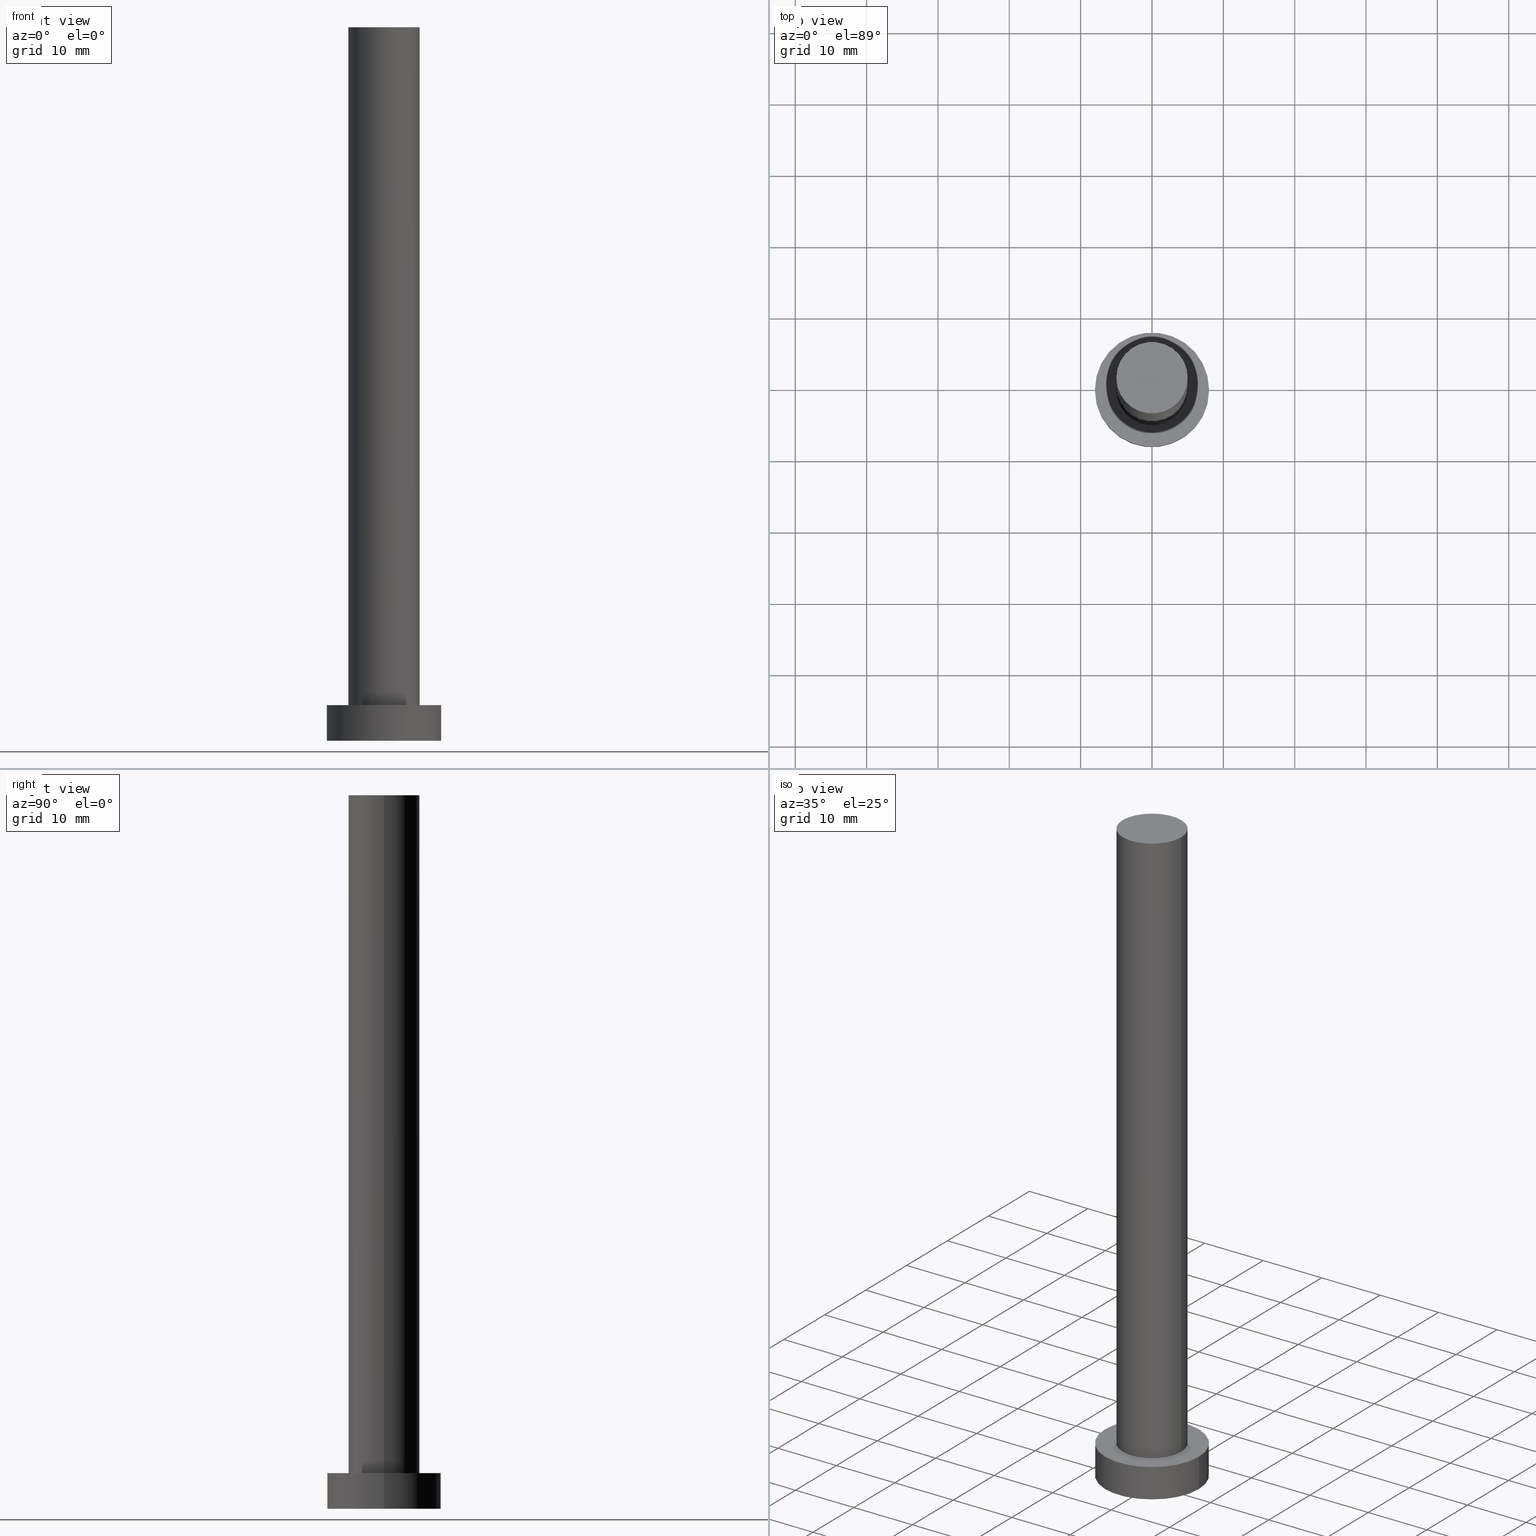
[diagram: canonical four-view strip — front | top / right | iso, engineering-drawing reading convention]
A machine part, canonical four-view strip (front | top / right | iso — engineering-drawing reading convention). The complete STEP part file that produces these views, byte-faithful:
ISO-10303-21;
HEADER;
FILE_DESCRIPTION (( 'STEP AP203' ),
    '1' );
FILE_NAME ('5eb0.STEP',
    '2023-02-12T11:07:32',
    ( '' ),
    ( '' ),
    'SwSTEP 2.0',
    'SolidWorks 2019',
    '' );
FILE_SCHEMA (( 'CONFIG_CONTROL_DESIGN' ));
ENDSEC;

DATA;
#1 = DIRECTION ( 'NONE',  ( -0.000000000000000000, -0.000000000000000000, -1.000000000000000000 ) ) ;
#2 = APPLICATION_CONTEXT ( 'configuration controlled 3d designs of mechanical parts and assemblies' ) ;
#3 = CARTESIAN_POINT ( 'NONE',  ( 5.000000000000000000, 6.123233995736766282E-16, 100.0000000000000000 ) ) ;
#4 = FACE_OUTER_BOUND ( 'NONE', #69, .T. ) ;
#5 = DIRECTION ( 'NONE',  ( 0.000000000000000000, 0.000000000000000000, 1.000000000000000000 ) ) ;
#6 = CC_DESIGN_PERSON_AND_ORGANIZATION_ASSIGNMENT ( #150, #173, ( #175 ) ) ;
#7 = CC_DESIGN_APPROVAL ( #140, ( #161 ) ) ;
#8 = APPROVAL_ROLE ( '' ) ;
#9 = ADVANCED_FACE ( 'NONE', ( #53 ), #100, .T. ) ;
#10 = APPROVAL_STATUS ( 'not_yet_approved' ) ;
#11 = APPROVAL_ROLE ( '' ) ;
#12 = PERSON_AND_ORGANIZATION ( #141, #99 ) ;
#13 = CIRCLE ( 'NONE', #78, 5.000000000000000000 ) ;
#14 = APPROVAL_PERSON_ORGANIZATION ( #230, #116, #49 ) ;
#15 = DIRECTION ( 'NONE',  ( -0.000000000000000000, -0.000000000000000000, -1.000000000000000000 ) ) ;
#16 = CC_DESIGN_DATE_AND_TIME_ASSIGNMENT ( #68, #228, ( #235 ) ) ;
#17 = ORIENTED_EDGE ( 'NONE', *, *, #40, .F. ) ;
#18 = ORIENTED_EDGE ( 'NONE', *, *, #75, .T. ) ;
#19 = AXIS2_PLACEMENT_3D ( 'NONE', #240, #145, #187 ) ;
#20 = ORIENTED_EDGE ( 'NONE', *, *, #119, .F. ) ;
#21 = EDGE_LOOP ( 'NONE', ( #118, #156 ) ) ;
#22 = LINE ( 'NONE', #38, #122 ) ;
#23 = CYLINDRICAL_SURFACE ( 'NONE', #19, 8.000000000000000000 ) ;
#24 = EDGE_CURVE ( 'NONE', #104, #139, #255, .T. ) ;
#25 = CYLINDRICAL_SURFACE ( 'NONE', #41, 5.000000000000000000 ) ;
#26 = CARTESIAN_POINT ( 'NONE',  ( 0.000000000000000000, 0.000000000000000000, 5.000000000000000000 ) ) ;
#27 = PRODUCT ( '5eb0', '5eb0', '', ( #109 ) ) ;
#28 = PERSON_AND_ORGANIZATION_ROLE ( 'design_owner' ) ;
#29 = CALENDAR_DATE ( 2023, 12, 2 ) ;
#30 = LOCAL_TIME ( 12, 7, 32.00000000000000000, #89 ) ;
#31 = EDGE_LOOP ( 'NONE', ( #193, #17, #237, #205 ) ) ;
#32 = AXIS2_PLACEMENT_3D ( 'NONE', #94, #55, #102 ) ;
#33 = MANIFOLD_SOLID_BREP ( 'P�idat vysunut�m3', #218 ) ;
#34 = ORIENTED_EDGE ( 'NONE', *, *, #67, .F. ) ;
#35 = CARTESIAN_POINT ( 'NONE',  ( 0.000000000000000000, 0.000000000000000000, 5.000000000000000000 ) ) ;
#36 = DIRECTION ( 'NONE',  ( 0.000000000000000000, 0.000000000000000000, 1.000000000000000000 ) ) ;
#37 = CARTESIAN_POINT ( 'NONE',  ( 0.000000000000000000, 0.000000000000000000, 5.000000000000000000 ) ) ;
#38 = CARTESIAN_POINT ( 'NONE',  ( 5.000000000000000000, 6.123233995736766282E-16, 100.0000000000000000 ) ) ;
#39 = ORIENTED_EDGE ( 'NONE', *, *, #250, .F. ) ;
#40 = EDGE_CURVE ( 'NONE', #74, #234, #214, .T. ) ;
#41 = AXIS2_PLACEMENT_3D ( 'NONE', #57, #1, #165 ) ;
#42 = CARTESIAN_POINT ( 'NONE',  ( -8.000000000000000000, 0.000000000000000000, 5.000000000000000000 ) ) ;
#43 = CARTESIAN_POINT ( 'NONE',  ( 0.000000000000000000, 0.000000000000000000, 0.000000000000000000 ) ) ;
#44 = CIRCLE ( 'NONE', #84, 8.000000000000000000 ) ;
#45 = DIRECTION ( 'NONE',  ( 1.000000000000000000, 0.000000000000000000, 0.000000000000000000 ) ) ;
#46 = PERSON_AND_ORGANIZATION ( #141, #99 ) ;
#47 = EDGE_CURVE ( 'NONE', #74, #178, #251, .T. ) ;
#48 = AXIS2_PLACEMENT_3D ( 'NONE', #35, #36, #121 ) ;
#49 = APPROVAL_ROLE ( '' ) ;
#50 = CARTESIAN_POINT ( 'NONE',  ( 0.000000000000000000, 0.000000000000000000, 5.000000000000000000 ) ) ;
#51 = ADVANCED_FACE ( 'NONE', ( #177 ), #71, .F. ) ;
#52 = DIRECTION ( 'NONE',  ( 1.000000000000000000, 0.000000000000000000, 0.000000000000000000 ) ) ;
#53 = FACE_OUTER_BOUND ( 'NONE', #31, .T. ) ;
#54 = DIRECTION ( 'NONE',  ( -0.000000000000000000, -0.000000000000000000, -1.000000000000000000 ) ) ;
#55 = DIRECTION ( 'NONE',  ( -0.000000000000000000, -0.000000000000000000, -1.000000000000000000 ) ) ;
#56 = APPROVAL_PERSON_ORGANIZATION ( #170, #64, #11 ) ;
#57 = CARTESIAN_POINT ( 'NONE',  ( 0.000000000000000000, 0.000000000000000000, 100.0000000000000000 ) ) ;
#58 =( NAMED_UNIT ( * ) PLANE_ANGLE_UNIT ( ) SI_UNIT ( $, .RADIAN. ) );
#59 = CC_DESIGN_PERSON_AND_ORGANIZATION_ASSIGNMENT ( #211, #28, ( #27 ) ) ;
#60 = CARTESIAN_POINT ( 'NONE',  ( -8.000000000000000000, 0.000000000000000000, 0.000000000000000000 ) ) ;
#61 = DIRECTION ( 'NONE',  ( 0.000000000000000000, 0.000000000000000000, 1.000000000000000000 ) ) ;
#62 = LOCAL_TIME ( 12, 7, 32.00000000000000000, #248 ) ;
#63 = FACE_OUTER_BOUND ( 'NONE', #197, .T. ) ;
#64 = APPROVAL ( #10, 'NEUR�EN�' ) ;
#65 = PERSON_AND_ORGANIZATION ( #141, #99 ) ;
#66 = PERSON_AND_ORGANIZATION_ROLE ( 'design_supplier' ) ;
#67 = EDGE_CURVE ( 'NONE', #104, #194, #160, .T. ) ;
#68 = DATE_AND_TIME ( #29, #30 ) ;
#69 = EDGE_LOOP ( 'NONE', ( #77, #176, #106, #117 ) ) ;
#70 = UNCERTAINTY_MEASURE_WITH_UNIT (LENGTH_MEASURE( 1.000000000000000082E-05 ), #227, 'distance_accuracy_value', 'NONE');
#71 = PLANE ( 'NONE',  #171 ) ;
#72 = ORIENTED_EDGE ( 'NONE', *, *, #86, .T. ) ;
#73 = CC_DESIGN_APPROVAL ( #116, ( #235 ) ) ;
#74 = VERTEX_POINT ( 'NONE', #137 ) ;
#75 = EDGE_CURVE ( 'NONE', #194, #104, #97, .T. ) ;
#76 = ORIENTED_EDGE ( 'NONE', *, *, #24, .T. ) ;
#77 = ORIENTED_EDGE ( 'NONE', *, *, #75, .F. ) ;
#78 = AXIS2_PLACEMENT_3D ( 'NONE', #207, #83, #128 ) ;
#79 = APPLICATION_CONTEXT ( 'configuration controlled 3d designs of mechanical parts and assemblies' ) ;
#80 = CARTESIAN_POINT ( 'NONE',  ( 8.000000000000000000, 9.797174393178825657E-16, 5.000000000000000000 ) ) ;
#81 = ADVANCED_FACE ( 'NONE', ( #232 ), #220, .T. ) ;
#82 = DIRECTION ( 'NONE',  ( 0.000000000000000000, 0.000000000000000000, 1.000000000000000000 ) ) ;
#83 = DIRECTION ( 'NONE',  ( 0.000000000000000000, 0.000000000000000000, 1.000000000000000000 ) ) ;
#84 = AXIS2_PLACEMENT_3D ( 'NONE', #126, #5, #242 ) ;
#85 = DIRECTION ( 'NONE',  ( -0.000000000000000000, -0.000000000000000000, -1.000000000000000000 ) ) ;
#86 = EDGE_CURVE ( 'NONE', #134, #178, #174, .T. ) ;
#87 = COORDINATED_UNIVERSAL_TIME_OFFSET ( 1, 0, .AHEAD. ) ;
#88 = PERSON_AND_ORGANIZATION ( #141, #99 ) ;
#89 = COORDINATED_UNIVERSAL_TIME_OFFSET ( 1, 0, .AHEAD. ) ;
#90 = CC_DESIGN_PERSON_AND_ORGANIZATION_ASSIGNMENT ( #65, #66, ( #175 ) ) ;
#91 =( GEOMETRIC_REPRESENTATION_CONTEXT ( 3 ) GLOBAL_UNCERTAINTY_ASSIGNED_CONTEXT ( ( #70 ) ) GLOBAL_UNIT_ASSIGNED_CONTEXT ( ( #227, #58, #142 ) ) REPRESENTATION_CONTEXT ( 'NONE', 'WORKASPACE' ) );
#92 = DATE_AND_TIME ( #244, #131 ) ;
#93 = CALENDAR_DATE ( 2023, 12, 2 ) ;
#94 = CARTESIAN_POINT ( 'NONE',  ( 0.000000000000000000, 0.000000000000000000, 100.0000000000000000 ) ) ;
#95 = EDGE_LOOP ( 'NONE', ( #120, #135 ) ) ;
#96 = ORIENTED_EDGE ( 'NONE', *, *, #133, .T. ) ;
#97 = CIRCLE ( 'NONE', #241, 8.000000000000000000 ) ;
#98 = LOCAL_TIME ( 12, 7, 32.00000000000000000, #130 ) ;
#99 = ORGANIZATION ( 'NEUR�EN�', 'NEUR�EN�', '' ) ;
#100 = CYLINDRICAL_SURFACE ( 'NONE', #32, 5.000000000000000000 ) ;
#101 = ORIENTED_EDGE ( 'NONE', *, *, #112, .F. ) ;
#102 = DIRECTION ( 'NONE',  ( -1.000000000000000000, 0.000000000000000000, 0.000000000000000000 ) ) ;
#103 = APPLICATION_PROTOCOL_DEFINITION ( 'international standard', 'config_control_design', 1994, #79 ) ;
#104 = VERTEX_POINT ( 'NONE', #42 ) ;
#105 = DIRECTION ( 'NONE',  ( -0.000000000000000000, -0.000000000000000000, -1.000000000000000000 ) ) ;
#106 = ORIENTED_EDGE ( 'NONE', *, *, #112, .T. ) ;
#107 = PLANE ( 'NONE',  #247 ) ;
#108 = CARTESIAN_POINT ( 'NONE',  ( 5.000000000000000000, 6.123233995736766282E-16, 5.000000000000000000 ) ) ;
#109 = MECHANICAL_CONTEXT ( 'NONE', #79, 'mechanical' ) ;
#110 = PRODUCT_DEFINITION_SHAPE ( 'NONE', 'NONE',  #235 ) ;
#111 = APPROVAL_DATE_TIME ( #245, #116 ) ;
#112 = EDGE_CURVE ( 'NONE', #158, #139, #44, .T. ) ;
#113 = VECTOR ( 'NONE', #15, 1000.000000000000000 ) ;
#114 = SHAPE_DEFINITION_REPRESENTATION ( #110, #127 ) ;
#115 = DIRECTION ( 'NONE',  ( 0.000000000000000000, 0.000000000000000000, 1.000000000000000000 ) ) ;
#116 = APPROVAL ( #147, 'NEUR�EN�' ) ;
#117 = ORIENTED_EDGE ( 'NONE', *, *, #24, .F. ) ;
#118 = ORIENTED_EDGE ( 'NONE', *, *, #159, .F. ) ;
#119 = EDGE_CURVE ( 'NONE', #234, #74, #13, .T. ) ;
#120 = ORIENTED_EDGE ( 'NONE', *, *, #40, .T. ) ;
#121 = DIRECTION ( 'NONE',  ( 1.000000000000000000, 0.000000000000000000, 0.000000000000000000 ) ) ;
#122 = VECTOR ( 'NONE', #85, 1000.000000000000000 ) ;
#123 = CARTESIAN_POINT ( 'NONE',  ( 0.000000000000000000, 0.000000000000000000, 5.000000000000000000 ) ) ;
#124 = DIRECTION ( 'NONE',  ( 1.000000000000000000, 0.000000000000000000, 0.000000000000000000 ) ) ;
#125 = CARTESIAN_POINT ( 'NONE',  ( 8.000000000000000000, 9.797174393178825657E-16, 5.000000000000000000 ) ) ;
#126 = CARTESIAN_POINT ( 'NONE',  ( 0.000000000000000000, 0.000000000000000000, 0.000000000000000000 ) ) ;
#127 = ADVANCED_BREP_SHAPE_REPRESENTATION ( '5eb0', ( #33, #190 ), #91 ) ;
#128 = DIRECTION ( 'NONE',  ( 1.000000000000000000, 0.000000000000000000, 0.000000000000000000 ) ) ;
#129 = PERSON_AND_ORGANIZATION_ROLE ( 'creator' ) ;
#130 = COORDINATED_UNIVERSAL_TIME_OFFSET ( 1, 0, .AHEAD. ) ;
#131 = LOCAL_TIME ( 12, 7, 32.00000000000000000, #87 ) ;
#132 = APPROVAL_DATE_TIME ( #188, #64 ) ;
#133 = EDGE_CURVE ( 'NONE', #234, #134, #22, .T. ) ;
#134 = VERTEX_POINT ( 'NONE', #108 ) ;
#135 = ORIENTED_EDGE ( 'NONE', *, *, #119, .T. ) ;
#136 = AXIS2_PLACEMENT_3D ( 'NONE', #26, #61, #124 ) ;
#137 = CARTESIAN_POINT ( 'NONE',  ( -5.000000000000000000, 0.000000000000000000, 100.0000000000000000 ) ) ;
#138 = DIRECTION ( 'NONE',  ( 0.000000000000000000, 0.000000000000000000, 1.000000000000000000 ) ) ;
#139 = VERTEX_POINT ( 'NONE', #60 ) ;
#140 = APPROVAL ( #216, 'NEUR�EN�' ) ;
#141 = PERSON ( 'NEUR�EN�', 'NEUR�EN�', 'NEUR�EN�', ('NEUR�EN�'), ('NEUR�EN�'), ('NEUR�EN�') ) ;
#142 =( NAMED_UNIT ( * ) SI_UNIT ( $, .STERADIAN. ) SOLID_ANGLE_UNIT ( ) );
#143 = CC_DESIGN_PERSON_AND_ORGANIZATION_ASSIGNMENT ( #46, #229, ( #161 ) ) ;
#144 = CIRCLE ( 'NONE', #136, 5.000000000000000000 ) ;
#145 = DIRECTION ( 'NONE',  ( -0.000000000000000000, -0.000000000000000000, -1.000000000000000000 ) ) ;
#146 = PLANE ( 'NONE',  #210 ) ;
#147 = APPROVAL_STATUS ( 'not_yet_approved' ) ;
#148 = CALENDAR_DATE ( 2023, 12, 2 ) ;
#149 = SECURITY_CLASSIFICATION_LEVEL ( 'unclassified' ) ;
#150 = PERSON_AND_ORGANIZATION ( #141, #99 ) ;
#151 = CALENDAR_DATE ( 2023, 12, 2 ) ;
#152 = CC_DESIGN_SECURITY_CLASSIFICATION ( #161, ( #175 ) ) ;
#153 = DIRECTION ( 'NONE',  ( 0.000000000000000000, 0.000000000000000000, 1.000000000000000000 ) ) ;
#154 = DIRECTION ( 'NONE',  ( 1.000000000000000000, 0.000000000000000000, -0.000000000000000000 ) ) ;
#155 = ADVANCED_FACE ( 'NONE', ( #206 ), #107, .T. ) ;
#156 = ORIENTED_EDGE ( 'NONE', *, *, #86, .F. ) ;
#157 = EDGE_LOOP ( 'NONE', ( #20, #96, #72, #254 ) ) ;
#158 = VERTEX_POINT ( 'NONE', #204 ) ;
#159 = EDGE_CURVE ( 'NONE', #178, #134, #144, .T. ) ;
#160 = CIRCLE ( 'NONE', #189, 8.000000000000000000 ) ;
#161 = SECURITY_CLASSIFICATION ( '', '', #149 ) ;
#162 = DIRECTION ( 'NONE',  ( 1.000000000000000000, 0.000000000000000000, -0.000000000000000000 ) ) ;
#163 = FACE_OUTER_BOUND ( 'NONE', #157, .T. ) ;
#164 = ADVANCED_FACE ( 'NONE', ( #163 ), #25, .T. ) ;
#165 = DIRECTION ( 'NONE',  ( -1.000000000000000000, 0.000000000000000000, 0.000000000000000000 ) ) ;
#166 = AXIS2_PLACEMENT_3D ( 'NONE', #195, #180, #252 ) ;
#167 = CARTESIAN_POINT ( 'NONE',  ( -5.000000000000000000, 0.000000000000000000, 5.000000000000000000 ) ) ;
#168 = PRODUCT_RELATED_PRODUCT_CATEGORY ( 'detail', '', ( #27 ) ) ;
#169 = APPROVAL_DATE_TIME ( #92, #140 ) ;
#170 = PERSON_AND_ORGANIZATION ( #141, #99 ) ;
#171 = AXIS2_PLACEMENT_3D ( 'NONE', #223, #138, #154 ) ;
#172 = COORDINATED_UNIVERSAL_TIME_OFFSET ( 1, 0, .AHEAD. ) ;
#173 = PERSON_AND_ORGANIZATION_ROLE ( 'creator' ) ;
#174 = CIRCLE ( 'NONE', #48, 5.000000000000000000 ) ;
#175 = PRODUCT_DEFINITION_FORMATION_WITH_SPECIFIED_SOURCE ( 'LIBOVOLN�', '', #27, .NOT_KNOWN. ) ;
#176 = ORIENTED_EDGE ( 'NONE', *, *, #191, .T. ) ;
#177 = FACE_OUTER_BOUND ( 'NONE', #225, .T. ) ;
#178 = VERTEX_POINT ( 'NONE', #167 ) ;
#179 = CIRCLE ( 'NONE', #199, 8.000000000000000000 ) ;
#180 = DIRECTION ( 'NONE',  ( 0.000000000000000000, 0.000000000000000000, 1.000000000000000000 ) ) ;
#181 = ORIENTED_EDGE ( 'NONE', *, *, #67, .T. ) ;
#182 = ORIENTED_EDGE ( 'NONE', *, *, #250, .T. ) ;
#183 = LOCAL_TIME ( 12, 7, 32.00000000000000000, #172 ) ;
#184 = DESIGN_CONTEXT ( 'detailed design', #2, 'design' ) ;
#185 = DIRECTION ( 'NONE',  ( 0.000000000000000000, 0.000000000000000000, 1.000000000000000000 ) ) ;
#186 = CARTESIAN_POINT ( 'NONE',  ( 0.000000000000000000, 0.000000000000000000, 5.000000000000000000 ) ) ;
#187 = DIRECTION ( 'NONE',  ( -1.000000000000000000, 0.000000000000000000, 0.000000000000000000 ) ) ;
#188 = DATE_AND_TIME ( #93, #62 ) ;
#189 = AXIS2_PLACEMENT_3D ( 'NONE', #37, #233, #253 ) ;
#190 = AXIS2_PLACEMENT_3D ( 'NONE', #192, #115, #45 ) ;
#191 = EDGE_CURVE ( 'NONE', #194, #158, #243, .T. ) ;
#192 = CARTESIAN_POINT ( 'NONE',  ( 0.000000000000000000, 0.000000000000000000, 0.000000000000000000 ) ) ;
#193 = ORIENTED_EDGE ( 'NONE', *, *, #133, .F. ) ;
#194 = VERTEX_POINT ( 'NONE', #125 ) ;
#195 = CARTESIAN_POINT ( 'NONE',  ( 0.000000000000000000, 0.000000000000000000, 100.0000000000000000 ) ) ;
#196 = AXIS2_PLACEMENT_3D ( 'NONE', #50, #222, #200 ) ;
#197 = EDGE_LOOP ( 'NONE', ( #181, #18 ) ) ;
#198 = CC_DESIGN_PERSON_AND_ORGANIZATION_ASSIGNMENT ( #88, #129, ( #235 ) ) ;
#199 = AXIS2_PLACEMENT_3D ( 'NONE', #43, #82, #226 ) ;
#200 = DIRECTION ( 'NONE',  ( -1.000000000000000000, 0.000000000000000000, 0.000000000000000000 ) ) ;
#201 = DIRECTION ( 'NONE',  ( 1.000000000000000000, 0.000000000000000000, -0.000000000000000000 ) ) ;
#202 = EDGE_LOOP ( 'NONE', ( #219, #34, #76, #182 ) ) ;
#203 = ADVANCED_FACE ( 'NONE', ( #208, #63 ), #146, .T. ) ;
#204 = CARTESIAN_POINT ( 'NONE',  ( 8.000000000000000000, 9.797174393178825657E-16, 0.000000000000000000 ) ) ;
#205 = ORIENTED_EDGE ( 'NONE', *, *, #159, .T. ) ;
#206 = FACE_OUTER_BOUND ( 'NONE', #95, .T. ) ;
#207 = CARTESIAN_POINT ( 'NONE',  ( 0.000000000000000000, 0.000000000000000000, 100.0000000000000000 ) ) ;
#208 = FACE_BOUND ( 'NONE', #21, .T. ) ;
#209 = ADVANCED_FACE ( 'NONE', ( #4 ), #23, .T. ) ;
#210 = AXIS2_PLACEMENT_3D ( 'NONE', #186, #239, #201 ) ;
#211 = PERSON_AND_ORGANIZATION ( #141, #99 ) ;
#212 = DATE_TIME_ROLE ( 'classification_date' ) ;
#213 = DATE_AND_TIME ( #151, #98 ) ;
#214 = CIRCLE ( 'NONE', #166, 5.000000000000000000 ) ;
#215 = VECTOR ( 'NONE', #105, 1000.000000000000000 ) ;
#216 = APPROVAL_STATUS ( 'not_yet_approved' ) ;
#217 = CARTESIAN_POINT ( 'NONE',  ( -8.000000000000000000, 0.000000000000000000, 5.000000000000000000 ) ) ;
#218 = CLOSED_SHELL ( 'NONE', ( #164, #209, #81, #203, #51, #9, #155 ) ) ;
#219 = ORIENTED_EDGE ( 'NONE', *, *, #191, .F. ) ;
#220 = CYLINDRICAL_SURFACE ( 'NONE', #196, 8.000000000000000000 ) ;
#221 = CC_DESIGN_DATE_AND_TIME_ASSIGNMENT ( #213, #212, ( #161 ) ) ;
#222 = DIRECTION ( 'NONE',  ( -0.000000000000000000, -0.000000000000000000, -1.000000000000000000 ) ) ;
#223 = CARTESIAN_POINT ( 'NONE',  ( 0.000000000000000000, 0.000000000000000000, 0.000000000000000000 ) ) ;
#224 = CARTESIAN_POINT ( 'NONE',  ( 0.000000000000000000, 0.000000000000000000, 100.0000000000000000 ) ) ;
#225 = EDGE_LOOP ( 'NONE', ( #39, #101 ) ) ;
#226 = DIRECTION ( 'NONE',  ( 1.000000000000000000, 0.000000000000000000, 0.000000000000000000 ) ) ;
#227 =( LENGTH_UNIT ( ) NAMED_UNIT ( * ) SI_UNIT ( .MILLI., .METRE. ) );
#228 = DATE_TIME_ROLE ( 'creation_date' ) ;
#229 = PERSON_AND_ORGANIZATION_ROLE ( 'classification_officer' ) ;
#230 = PERSON_AND_ORGANIZATION ( #141, #99 ) ;
#231 = APPROVAL_PERSON_ORGANIZATION ( #12, #140, #8 ) ;
#232 = FACE_OUTER_BOUND ( 'NONE', #202, .T. ) ;
#233 = DIRECTION ( 'NONE',  ( 0.000000000000000000, 0.000000000000000000, 1.000000000000000000 ) ) ;
#234 = VERTEX_POINT ( 'NONE', #3 ) ;
#235 = PRODUCT_DEFINITION ( 'NEZN�M�', '', #175, #184 ) ;
#236 = CARTESIAN_POINT ( 'NONE',  ( -5.000000000000000000, 0.000000000000000000, 100.0000000000000000 ) ) ;
#237 = ORIENTED_EDGE ( 'NONE', *, *, #47, .T. ) ;
#238 = CC_DESIGN_APPROVAL ( #64, ( #175 ) ) ;
#239 = DIRECTION ( 'NONE',  ( 0.000000000000000000, 0.000000000000000000, 1.000000000000000000 ) ) ;
#240 = CARTESIAN_POINT ( 'NONE',  ( 0.000000000000000000, 0.000000000000000000, 5.000000000000000000 ) ) ;
#241 = AXIS2_PLACEMENT_3D ( 'NONE', #123, #153, #52 ) ;
#242 = DIRECTION ( 'NONE',  ( 1.000000000000000000, 0.000000000000000000, 0.000000000000000000 ) ) ;
#243 = LINE ( 'NONE', #80, #215 ) ;
#244 = CALENDAR_DATE ( 2023, 12, 2 ) ;
#245 = DATE_AND_TIME ( #148, #183 ) ;
#246 = VECTOR ( 'NONE', #54, 1000.000000000000000 ) ;
#247 = AXIS2_PLACEMENT_3D ( 'NONE', #224, #185, #162 ) ;
#248 = COORDINATED_UNIVERSAL_TIME_OFFSET ( 1, 0, .AHEAD. ) ;
#249 = APPLICATION_PROTOCOL_DEFINITION ( 'international standard', 'config_control_design', 1994, #2 ) ;
#250 = EDGE_CURVE ( 'NONE', #139, #158, #179, .T. ) ;
#251 = LINE ( 'NONE', #236, #246 ) ;
#252 = DIRECTION ( 'NONE',  ( 1.000000000000000000, 0.000000000000000000, 0.000000000000000000 ) ) ;
#253 = DIRECTION ( 'NONE',  ( 1.000000000000000000, 0.000000000000000000, 0.000000000000000000 ) ) ;
#254 = ORIENTED_EDGE ( 'NONE', *, *, #47, .F. ) ;
#255 = LINE ( 'NONE', #217, #113 ) ;
ENDSEC;
END-ISO-10303-21;
